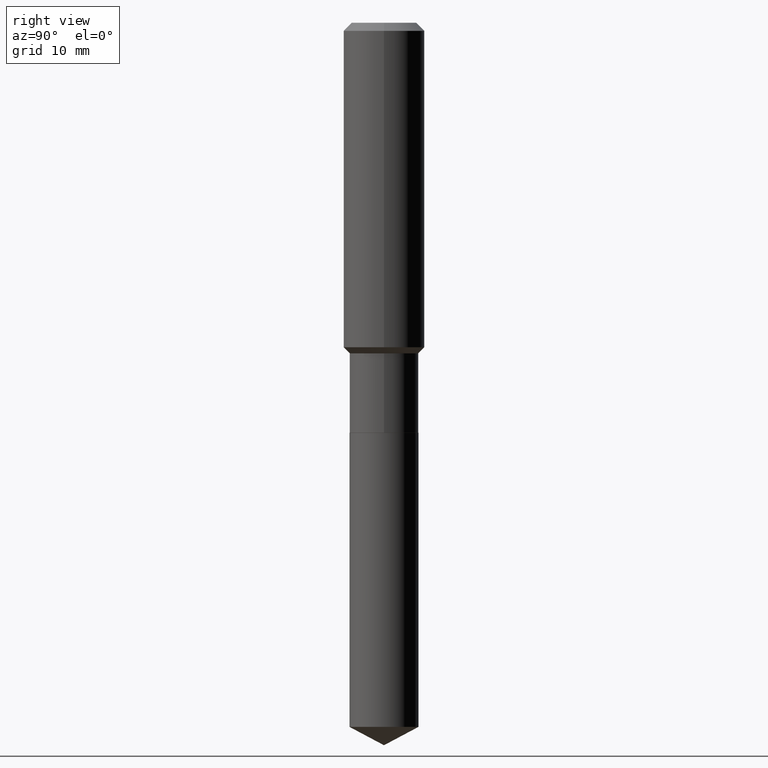
[diagram: clean part render]
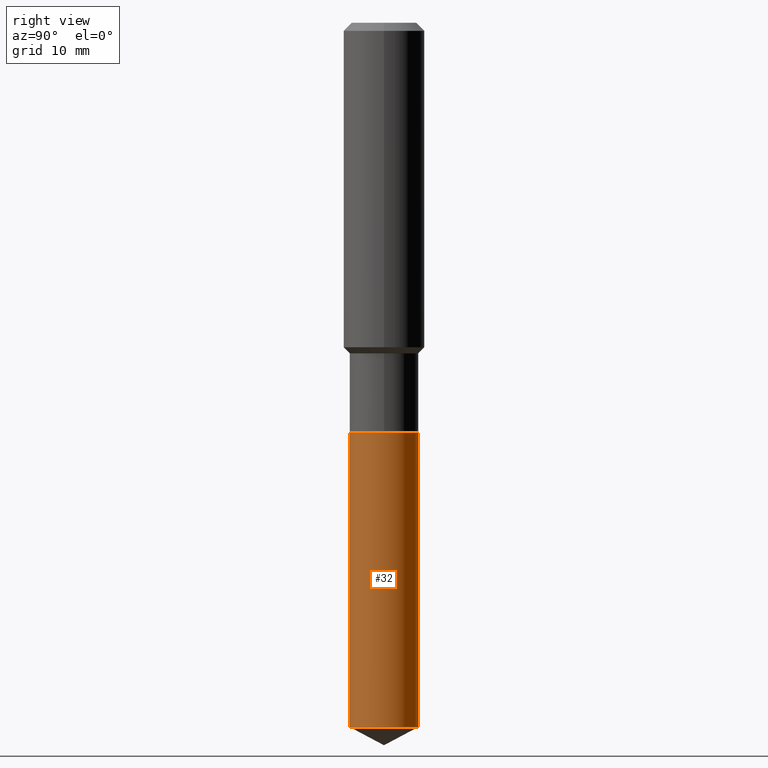
[diagram: same view with one face highlighted and labeled with its STEP entity id]
A machine part, right view. The second image highlights one B-rep face of the part: STEP entity #32.
In plain terms, the highlighted cylindrical surface (edge-blend (fillet) strip) has radius 4.2494 mm, axis along (-0, 0, 1).
Its self-contained STEP definition (entity closure, byte-faithful):
#9 = FACE_OUTER_BOUND ( 'NONE', #263, .T. ) ;
#22 = CARTESIAN_POINT ( 'NONE',  ( 1.188737996926731261E-15, 0.1672999999999881249, -3.414945012083035358 ) ) ;
#32 = ADVANCED_FACE ( 'NONE', ( #9 ), #422, .T. ) ;
#74 = VERTEX_POINT ( 'NONE', #22 ) ;
#85 = DIRECTION ( 'NONE',  ( -6.982962677686266711E-15, -1.000000000000000000, 3.265807523806650431E-15 ) ) ;
#96 = ORIENTED_EDGE ( 'NONE', *, *, #225, .F. ) ;
#101 = LINE ( 'NONE', #450, #367 ) ;
#121 = DIRECTION ( 'NONE',  ( -2.445516292350435561E-29, 3.491413335951692307E-15, 1.000000000000000000 ) ) ;
#142 = VERTEX_POINT ( 'NONE', #465 ) ;
#152 = EDGE_CURVE ( 'NONE', #74, #142, #101, .T. ) ;
#192 = LINE ( 'NONE', #341, #404 ) ;
#211 = AXIS2_PLACEMENT_3D ( 'NONE', #273, #417, #223 ) ;
#215 = CARTESIAN_POINT ( 'NONE',  ( -1.168249655976829167E-15, -0.1673000000000119669, -3.414945012083034026 ) ) ;
#222 = AXIS2_PLACEMENT_3D ( 'NONE', #277, #454, #85 ) ;
#223 = DIRECTION ( 'NONE',  ( -6.982962677686266711E-15, -1.000000000000000000, 3.265807523806650431E-15 ) ) ;
#225 = EDGE_CURVE ( 'NONE', #321, #142, #243, .T. ) ;
#243 = CIRCLE ( 'NONE', #222, 0.1673000000000000043 ) ;
#251 = CARTESIAN_POINT ( 'NONE',  ( 4.861836533576669787E-29, -6.941414049754057014E-15, -1.988099999999999756 ) ) ;
#263 = EDGE_LOOP ( 'NONE', ( #365, #302, #96, #385 ) ) ;
#273 = CARTESIAN_POINT ( 'NONE',  ( 8.351209257284685878E-29, -1.192311975327691993E-14, -3.414945012083034914 ) ) ;
#274 = EDGE_CURVE ( 'NONE', #490, #74, #441, .T. ) ;
#277 = CARTESIAN_POINT ( 'NONE',  ( 4.861836533576669787E-29, -6.941414049754057014E-15, -1.988099999999999756 ) ) ;
#302 = ORIENTED_EDGE ( 'NONE', *, *, #152, .T. ) ;
#321 = VERTEX_POINT ( 'NONE', #371 ) ;
#341 = CARTESIAN_POINT ( 'NONE',  ( -1.168249655976863877E-15, -0.1673000000000069432, -1.988099999999999312 ) ) ;
#365 = ORIENTED_EDGE ( 'NONE', *, *, #274, .T. ) ;
#367 = VECTOR ( 'NONE', #121, 39.37007874015748143 ) ;
#371 = CARTESIAN_POINT ( 'NONE',  ( -1.168249655976863877E-15, -0.1673000000000069432, -1.988099999999999312 ) ) ;
#381 = DIRECTION ( 'NONE',  ( -2.445516292350435841E-29, 3.491413335951692307E-15, 1.000000000000000000 ) ) ;
#385 = ORIENTED_EDGE ( 'NONE', *, *, #436, .F. ) ;
#393 = AXIS2_PLACEMENT_3D ( 'NONE', #251, #381, #458 ) ;
#404 = VECTOR ( 'NONE', #489, 39.37007874015748143 ) ;
#417 = DIRECTION ( 'NONE',  ( -2.445516292350435841E-29, 3.491413335951692307E-15, 1.000000000000000000 ) ) ;
#422 = CYLINDRICAL_SURFACE ( 'NONE', #393, 0.1673000000000000043 ) ;
#436 = EDGE_CURVE ( 'NONE', #490, #321, #192, .T. ) ;
#441 = CIRCLE ( 'NONE', #211, 0.1673000000000000043 ) ;
#450 = CARTESIAN_POINT ( 'NONE',  ( 1.188737996926695959E-15, 0.1672999999999930931, -1.988100000000000200 ) ) ;
#454 = DIRECTION ( 'NONE',  ( -2.445516292350435841E-29, 3.491413335951692307E-15, 1.000000000000000000 ) ) ;
#458 = DIRECTION ( 'NONE',  ( -6.982962677686266711E-15, -1.000000000000000000, 3.265807523806650431E-15 ) ) ;
#465 = CARTESIAN_POINT ( 'NONE',  ( 1.188737996926731261E-15, 0.1672999999999930931, -1.988100000000000200 ) ) ;
#489 = DIRECTION ( 'NONE',  ( -2.445516292350435561E-29, 3.491413335951692307E-15, 1.000000000000000000 ) ) ;
#490 = VERTEX_POINT ( 'NONE', #215 ) ;